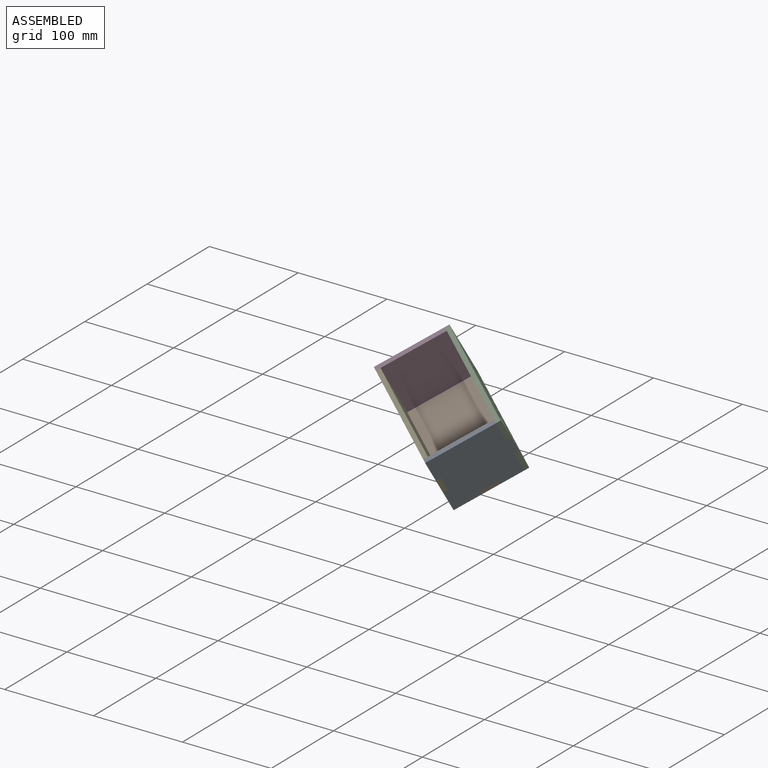
[diagram: assembled view]
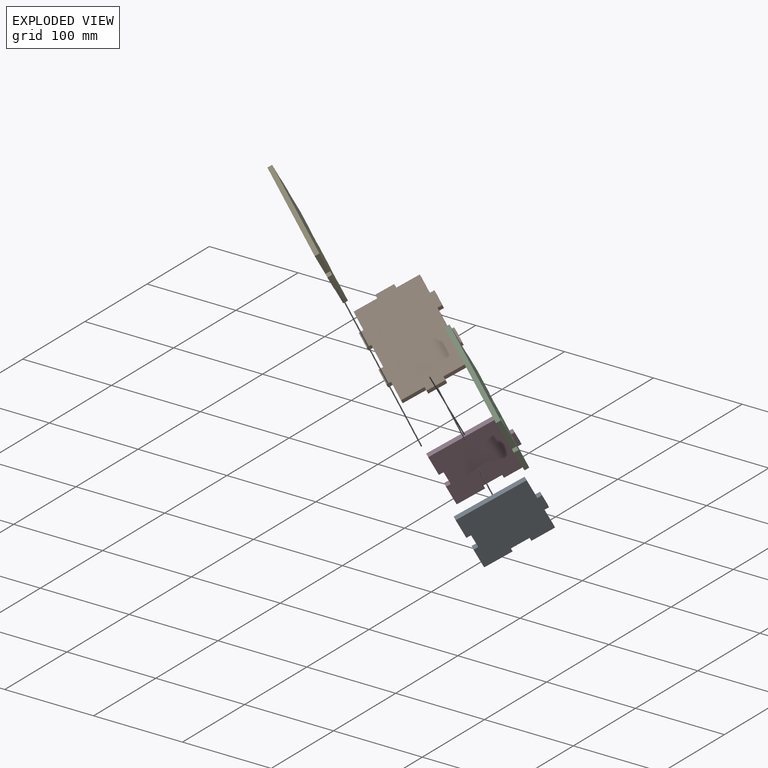
[diagram: exploded view]
GUIDED TOUR — MATED ASSEMBLY (Onshape document 593e45ef1ea8e15d8db4bd67, AutoMate assembly 593e45ef1ea8e15d8db4bd67_9d60de0c282ac33b591d1c6a_9a414924391e167146b77d06_default)

This assembly has 5 components, labeled P0..P4 below (a component is one placed occurrence of a part; the same part can appear more than once), held together by 4 mates. A mate is a constraint between two components; its type names the relative motion it leaves free:
  FASTENED — locks the two components together rigidly (no relative motion).
Axis/direction vectors are unit vectors and 'through' points are millimeter coordinates, both in the assembly's world frame.

MATES
  1. FASTENED "Fastened 1": P0 <-> P2, direction (-0.793, 0.499, 0.349) through (293.59, -2.16, 192.42) mm
  2. FASTENED "Fastened 2": P1 <-> P2, direction (-0.793, 0.499, 0.349) through (265.83, 35.37, 175.97) mm
  3. FASTENED "Fastened 4": P3 <-> P2, direction (0.000, -0.574, 0.819) through (198.40, 57.69, 234.33) mm
  4. FASTENED "Fastened 3": P4 <-> P1, direction (0.793, -0.499, -0.349) through (177.46, 8.32, 157.03) mm

ASSEMBLY ORDER
  1. P2 — the base component [order heuristic]
  2. P1 — core [order heuristic]
  3. P3 — core [order heuristic]
  4. P4 — core [order heuristic]
  5. P0 [order verified]
(P0 verified with a relaxed clearance tolerance: the source model stores slight part interference there.)
Order-tag legend:
  [order verified] — this step's position reverses a verified removal order: the component was checked to insert without passing through the ones already placed.
  [order heuristic] — the first 4 components form the assembly's core: parts whose collision-free extraction could not be verified, listed in mate-graph order.

Of the 5 components, 5 carry the full construction recipe — the FeatureScript program that regenerates the part's solid from scratch; the rest are supplied as boundary geometry only.
Each toured component is shown spotlighted twice — in the assembled view, then in the exploded view, where a leader line traces a displaced component back to its assembled socket (saturated green if recipe-attached, orange if geometry-only; every other component desaturated gray) — followed by its recipe or geometry summary and the mates that hold it.
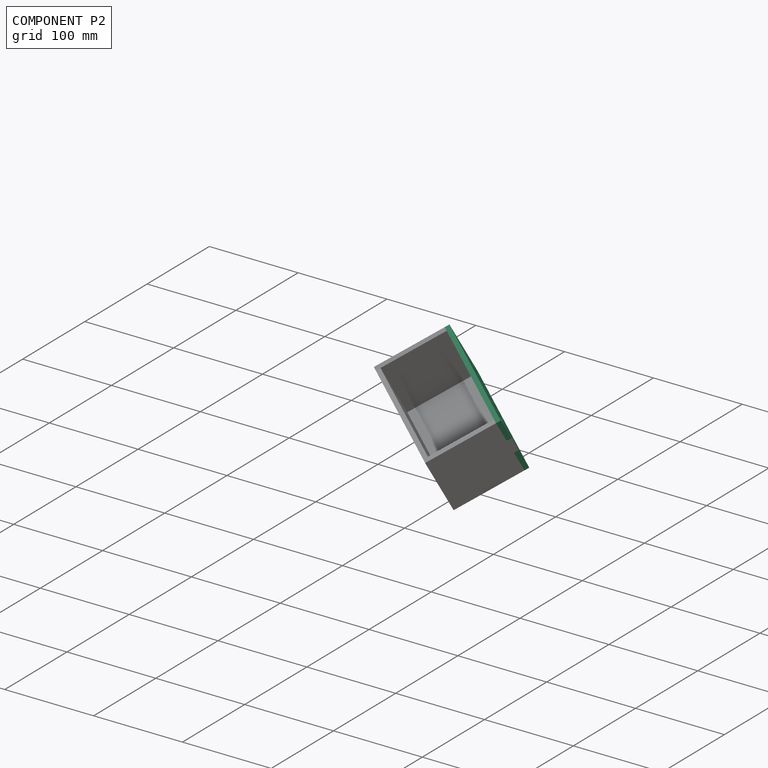
[diagram: component P2 — assembled]
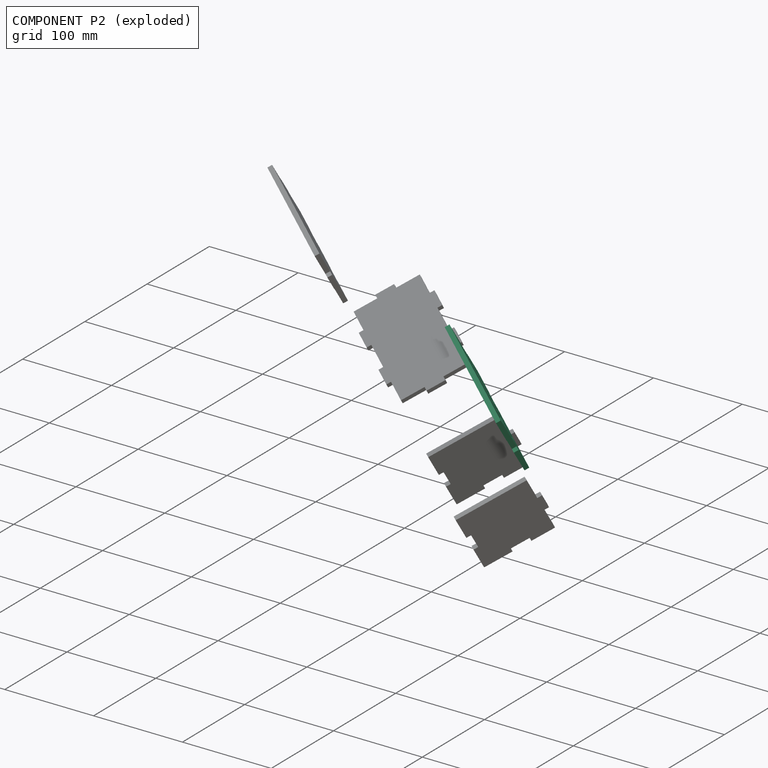
[diagram: component P2 — exploded]
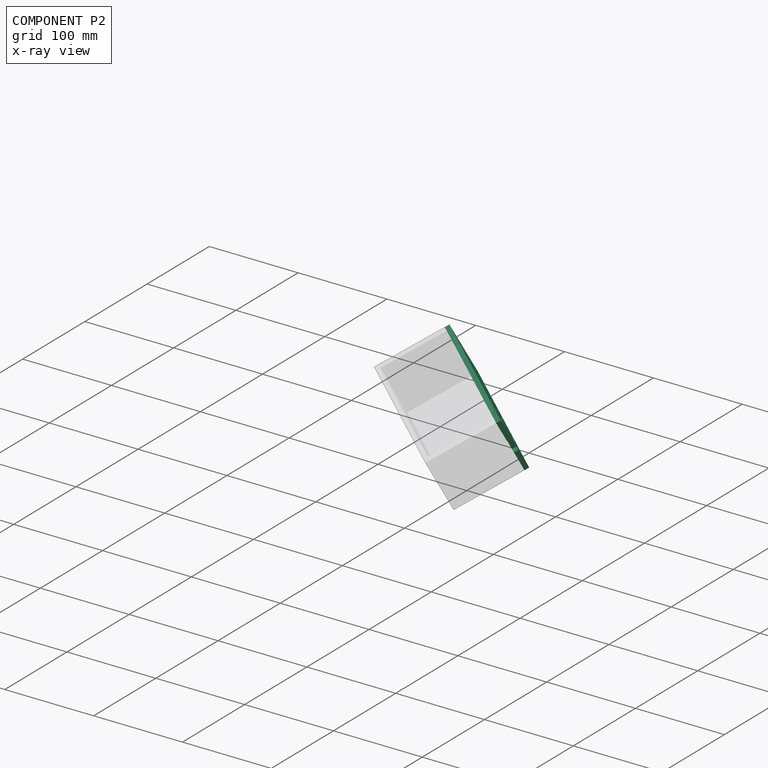
[diagram: component P2 — x-ray view]
COMPONENT P2 — recipe-attached (CADFS 00365997, mesh-verified: the recipe's output STEP matches this component's geometry to below the mesh-comparison resolution (tessellation chordal tolerance ~0.229 mm)).
Held by: FASTENED mate "Fastened 1" to P0; FASTENED mate "Fastened 2" to P1; FASTENED mate "Fastened 4" to P3.
Construction recipe (FeatureScript — the CAD program that rebuilds this solid; sketch coordinates are in the units given by the * unit suffixes, e.g. mm):

FeatureScript 1511;
import(path : "onshape/std/geometry.fs", version : "1511.0");
import(path : "onshape/std/common.fs", version : "1511.0");
const mm = millimeter;
const VERTEX = EntityType.VERTEX;
const EDGE = EntityType.EDGE;
const FACE = EntityType.FACE;
const BODY = EntityType.BODY;
function v(x, y){return vector(x, y);}
function OD(order){return orderDisambiguation(order);}
function OSD(set){return originalSetDisambiguation(set);}
function TD(topology){return topologyDisambiguation(topology);}
function TDD(query){return trueDependencyDisambiguation(query);}
function sQuery(a, b, c) {return sketchEntityQuery(a, b, c);}

annotation { "Feature Type Name" : "Feature", "Feature Type Description" : "" }
export const myFeature = defineFeature(function(context is Context, id is Id, definition is map)
    precondition{}
    {
        {
            var Q0;
            Q0=qCreatedBy(makeId("Front.planeOp"),FACE);
            var sketch = newSketch(context, id + "F0", { "sketchPlane" : qUnion([Q0])});
            skLineSegment(sketch, "E0", {"start": v(0, 0) * mm, "end": v(30, 0) * mm});
            skLineSegment(sketch, "E1", {"start": v(30, 0) * mm, "end": v(30, 5) * mm});
            skLineSegment(sketch, "E2", {"start": v(30, 5) * mm, "end": v(50, 5) * mm});
            skLineSegment(sketch, "E3", {"start": v(50, 5) * mm, "end": v(50, 0) * mm});
            skLineSegment(sketch, "E4", {"start": v(50, 0) * mm, "end": v(80, 0) * mm});
            skLineSegment(sketch, "E5", {"start": v(80, 0) * mm, "end": v(80, 5) * mm});
            skLineSegment(sketch, "E6", {"start": v(80, 5) * mm, "end": v(100, 5) * mm});
            skLineSegment(sketch, "E7", {"start": v(100, 5) * mm, "end": v(100, 0) * mm});
            skLineSegment(sketch, "E8", {"start": v(100, 0) * mm, "end": v(130, 0) * mm});
            skLineSegment(sketch, "E9", {"start": v(130, 0) * mm, "end": v(130, 30) * mm});
            skLineSegment(sketch, "E10", {"start": v(130, 30) * mm, "end": v(125, 30) * mm});
            skLineSegment(sketch, "E11", {"start": v(125, 30) * mm, "end": v(125, 50) * mm});
            skLineSegment(sketch, "E12", {"start": v(125, 50) * mm, "end": v(130, 50) * mm});
            skLineSegment(sketch, "E13", {"start": v(130, 50) * mm, "end": v(130, 80) * mm});
            skLineSegment(sketch, "E14", {"start": v(130, 80) * mm, "end": v(0, 80) * mm});
            skLineSegment(sketch, "E15", {"start": v(0, 80) * mm, "end": v(0, 50) * mm});
            skLineSegment(sketch, "E16", {"start": v(0, 50) * mm, "end": v(5, 50) * mm});
            skLineSegment(sketch, "E17", {"start": v(5, 50) * mm, "end": v(5, 30) * mm});
            skLineSegment(sketch, "E18", {"start": v(5, 30) * mm, "end": v(0, 30) * mm});
            skLineSegment(sketch, "E19", {"start": v(0, 30) * mm, "end": v(0, 0) * mm});
            skSolve(sketch);
        }
        {
            var Q0;
            Q0=makeQuery(id+"F0.imprint","IMPRINT",FACE,{"disambiguationData":[TD([[makeQuery(id+"F0.imprint","IMPRINT",EDGE,{"derivedFrom":sQuery(id+"F0.wireOp",EDGE,"E0")}),1.0]])]});
            extrude(context, id + "F1", {"entities" : qUnion([Q0]), "depth" : 5 * mm});
        }
        {
            var Q0;
            Q0=makeQuery(id+"F1.opExtrude","CAP_FACE",FACE,{"disambiguationData":[OSD([sQuery(id+"F0.wireOp",EDGE,"E0"),sQuery(id+"F0.wireOp",EDGE,"E1"),sQuery(id+"F0.wireOp",EDGE,"E2"),sQuery(id+"F0.wireOp",EDGE,"E3"),sQuery(id+"F0.wireOp",EDGE,"E4"),sQuery(id+"F0.wireOp",EDGE,"E5"),sQuery(id+"F0.wireOp",EDGE,"E6"),sQuery(id+"F0.wireOp",EDGE,"E7"),sQuery(id+"F0.wireOp",EDGE,"E8"),sQuery(id+"F0.wireOp",EDGE,"E9"),sQuery(id+"F0.wireOp",EDGE,"E10"),sQuery(id+"F0.wireOp",EDGE,"E11"),sQuery(id+"F0.wireOp",EDGE,"E12"),sQuery(id+"F0.wireOp",EDGE,"E13"),sQuery(id+"F0.wireOp",EDGE,"E14"),sQuery(id+"F0.wireOp",EDGE,"E15"),sQuery(id+"F0.wireOp",EDGE,"E16"),sQuery(id+"F0.wireOp",EDGE,"E17"),sQuery(id+"F0.wireOp",EDGE,"E18"),sQuery(id+"F0.wireOp",EDGE,"E19")])],"isStart":false});
            var sketch = newSketch(context, id + "F2", { "sketchPlane" : qUnion([Q0])});
            skLineSegment(sketch, "E20.bottom", {"start": v(12.5, 72) * mm, "end": v(25.5, 72) * mm});
            skLineSegment(sketch, "E20.top", {"start": v(12.5, 53) * mm, "end": v(25.5, 53) * mm});
            skLineSegment(sketch, "E20.left", {"start": v(12.5, 72) * mm, "end": v(12.5, 53) * mm});
            skLineSegment(sketch, "E20.right", {"start": v(25.5, 72) * mm, "end": v(25.5, 53) * mm});
            skLineSegment(sketch, "E21.bottom", {"start": v(32, 26) * mm, "end": v(38, 26) * mm});
            skLineSegment(sketch, "E21.top", {"start": v(32, 20) * mm, "end": v(38, 20) * mm});
            skLineSegment(sketch, "E21.left", {"start": v(32, 26) * mm, "end": v(32, 20) * mm});
            skLineSegment(sketch, "E21.right", {"start": v(38, 26) * mm, "end": v(38, 20) * mm});
            skLineSegment(sketch, "E22.bottom", {"start": v(50, 20) * mm, "end": v(44, 20) * mm});
            skLineSegment(sketch, "E22.top", {"start": v(50, 26) * mm, "end": v(44, 26) * mm});
            skLineSegment(sketch, "E22.left", {"start": v(50, 20) * mm, "end": v(50, 26) * mm});
            skLineSegment(sketch, "E22.right", {"start": v(44, 20) * mm, "end": v(44, 26) * mm});
            skPoint(sketch, "E22.middle", {"position": v(47, 23) * mm});
            skLineSegment(sketch, "E23.bottom", {"start": v(62, 20) * mm, "end": v(56, 20) * mm});
            skLineSegment(sketch, "E23.top", {"start": v(62, 26) * mm, "end": v(56, 26) * mm});
            skLineSegment(sketch, "E23.left", {"start": v(62, 20) * mm, "end": v(62, 26) * mm});
            skLineSegment(sketch, "E23.right", {"start": v(56, 20) * mm, "end": v(56, 26) * mm});
            skLineSegment(sketch, "E24.bottom", {"start": v(74, 20) * mm, "end": v(68, 20) * mm});
            skLineSegment(sketch, "E24.top", {"start": v(74, 26) * mm, "end": v(68, 26) * mm});
            skLineSegment(sketch, "E24.left", {"start": v(74, 20) * mm, "end": v(74, 26) * mm});
            skLineSegment(sketch, "E24.right", {"start": v(68, 20) * mm, "end": v(68, 26) * mm});
            skLineSegment(sketch, "E25.bottom", {"start": v(86, 20) * mm, "end": v(80, 20) * mm});
            skLineSegment(sketch, "E25.top", {"start": v(86, 26) * mm, "end": v(80, 26) * mm});
            skLineSegment(sketch, "E25.left", {"start": v(86, 20) * mm, "end": v(86, 26) * mm});
            skLineSegment(sketch, "E25.right", {"start": v(80, 20) * mm, "end": v(80, 26) * mm});
            skLineSegment(sketch, "E26.bottom", {"start": v(98, 20) * mm, "end": v(92, 20) * mm});
            skLineSegment(sketch, "E26.top", {"start": v(98, 26) * mm, "end": v(92, 26) * mm});
            skLineSegment(sketch, "E26.left", {"start": v(98, 20) * mm, "end": v(98, 26) * mm});
            skLineSegment(sketch, "E26.right", {"start": v(92, 20) * mm, "end": v(92, 26) * mm});
            skLineSegment(sketch, "E27.bottom", {"start": v(110, 20) * mm, "end": v(104, 20) * mm});
            skLineSegment(sketch, "E27.top", {"start": v(110, 26) * mm, "end": v(104, 26) * mm});
            skLineSegment(sketch, "E27.left", {"start": v(110, 20) * mm, "end": v(110, 26) * mm});
            skLineSegment(sketch, "E27.right", {"start": v(104, 20) * mm, "end": v(104, 26) * mm});
            skLineSegment(sketch, "E28.bottom", {"start": v(26, 20) * mm, "end": v(20, 20) * mm});
            skLineSegment(sketch, "E28.top", {"start": v(26, 26) * mm, "end": v(20, 26) * mm});
            skLineSegment(sketch, "E28.left", {"start": v(26, 20) * mm, "end": v(26, 26) * mm});
            skLineSegment(sketch, "E28.right", {"start": v(20, 20) * mm, "end": v(20, 26) * mm});
            skCircle(sketch, "E29", {"center": v(22.71, 41) * mm, "radius": 2.5 * mm});
            skCircle(sketch, "E30", {"center": v(34.71, 41) * mm, "radius": 2.5 * mm});
            skCircle(sketch, "E31", {"center": v(46.71, 41) * mm, "radius": 2.5 * mm});
            skCircle(sketch, "E32", {"center": v(58.71, 41) * mm, "radius": 2.5 * mm});
            skCircle(sketch, "E33", {"center": v(70.71, 41) * mm, "radius": 2.5 * mm});
            skCircle(sketch, "E34", {"center": v(82.71, 41) * mm, "radius": 2.5 * mm});
            skCircle(sketch, "E35", {"center": v(94.71, 41) * mm, "radius": 2.5 * mm});
            skCircle(sketch, "E36", {"center": v(106.71, 41) * mm, "radius": 2.5 * mm});
            skSolve(sketch);
        }
        {
            var Q0;
            Q0=makeQuery(id+"F2.imprint","IMPRINT",FACE,{"disambiguationData":[TD([[makeQuery(id+"F2.imprint","IMPRINT",EDGE,{"derivedFrom":sQuery(id+"F2.wireOp",EDGE,"E20.bottom")}),-1.0]])]});
            var Q1;
            Q1=makeQuery(id+"F2.imprint","IMPRINT",FACE,{"disambiguationData":[TD([[makeQuery(id+"F2.imprint","IMPRINT",EDGE,{"derivedFrom":sQuery(id+"F2.wireOp",EDGE,"E29")}),1.0]])]});
            var Q2;
            Q2=makeQuery(id+"F2.imprint","IMPRINT",FACE,{"disambiguationData":[TD([[makeQuery(id+"F2.imprint","IMPRINT",EDGE,{"derivedFrom":sQuery(id+"F2.wireOp",EDGE,"E30")}),1.0]])]});
            var Q3;
            Q3=makeQuery(id+"F2.imprint","IMPRINT",FACE,{"disambiguationData":[TD([[makeQuery(id+"F2.imprint","IMPRINT",EDGE,{"derivedFrom":sQuery(id+"F2.wireOp",EDGE,"E31")}),1.0]])]});
            var Q4;
            Q4=makeQuery(id+"F2.imprint","IMPRINT",FACE,{"disambiguationData":[TD([[makeQuery(id+"F2.imprint","IMPRINT",EDGE,{"derivedFrom":sQuery(id+"F2.wireOp",EDGE,"E32")}),1.0]])]});
            var Q5;
            Q5=makeQuery(id+"F2.imprint","IMPRINT",FACE,{"disambiguationData":[TD([[makeQuery(id+"F2.imprint","IMPRINT",EDGE,{"derivedFrom":sQuery(id+"F2.wireOp",EDGE,"E33")}),1.0]])]});
            var Q6;
            Q6=makeQuery(id+"F2.imprint","IMPRINT",FACE,{"disambiguationData":[TD([[makeQuery(id+"F2.imprint","IMPRINT",EDGE,{"derivedFrom":sQuery(id+"F2.wireOp",EDGE,"E34")}),1.0]])]});
            var Q7;
            Q7=makeQuery(id+"F2.imprint","IMPRINT",FACE,{"disambiguationData":[TD([[makeQuery(id+"F2.imprint","IMPRINT",EDGE,{"derivedFrom":sQuery(id+"F2.wireOp",EDGE,"E35")}),1.0]])]});
            var Q8;
            Q8=makeQuery(id+"F2.imprint","IMPRINT",FACE,{"disambiguationData":[TD([[makeQuery(id+"F2.imprint","IMPRINT",EDGE,{"derivedFrom":sQuery(id+"F2.wireOp",EDGE,"E36")}),1.0]])]});
            var Q9;
            Q9=makeQuery(id+"F2.imprint","IMPRINT",FACE,{"disambiguationData":[TD([[makeQuery(id+"F2.imprint","IMPRINT",EDGE,{"derivedFrom":sQuery(id+"F2.wireOp",EDGE,"E27.bottom")}),-1.0]])]});
            var Q10;
            Q10=makeQuery(id+"F2.imprint","IMPRINT",FACE,{"disambiguationData":[TD([[makeQuery(id+"F2.imprint","IMPRINT",EDGE,{"derivedFrom":sQuery(id+"F2.wireOp",EDGE,"E26.bottom")}),-1.0]])]});
            var Q11;
            Q11=makeQuery(id+"F2.imprint","IMPRINT",FACE,{"disambiguationData":[TD([[makeQuery(id+"F2.imprint","IMPRINT",EDGE,{"derivedFrom":sQuery(id+"F2.wireOp",EDGE,"E25.bottom")}),-1.0]])]});
            var Q12;
            Q12=makeQuery(id+"F2.imprint","IMPRINT",FACE,{"disambiguationData":[TD([[makeQuery(id+"F2.imprint","IMPRINT",EDGE,{"derivedFrom":sQuery(id+"F2.wireOp",EDGE,"E24.bottom")}),-1.0]])]});
            var Q13;
            Q13=makeQuery(id+"F2.imprint","IMPRINT",FACE,{"disambiguationData":[TD([[makeQuery(id+"F2.imprint","IMPRINT",EDGE,{"derivedFrom":sQuery(id+"F2.wireOp",EDGE,"E23.bottom")}),-1.0]])]});
            var Q14;
            Q14=makeQuery(id+"F2.imprint","IMPRINT",FACE,{"disambiguationData":[TD([[makeQuery(id+"F2.imprint","IMPRINT",EDGE,{"derivedFrom":sQuery(id+"F2.wireOp",EDGE,"E22.bottom")}),-1.0]])]});
            var Q15;
            Q15=makeQuery(id+"F2.imprint","IMPRINT",FACE,{"disambiguationData":[TD([[makeQuery(id+"F2.imprint","IMPRINT",EDGE,{"derivedFrom":sQuery(id+"F2.wireOp",EDGE,"E21.bottom")}),-1.0]])]});
            var Q16;
            Q16=makeQuery(id+"F2.imprint","IMPRINT",FACE,{"disambiguationData":[TD([[makeQuery(id+"F2.imprint","IMPRINT",EDGE,{"derivedFrom":sQuery(id+"F2.wireOp",EDGE,"E28.bottom")}),-1.0]])]});
            extrude(context, id + "F3", {"entities" : qUnion([Q0, Q1, Q2, Q3, Q4, Q5, Q6, Q7, Q8, Q9, Q10, Q11, Q12, Q13, Q14, Q15, Q16]), "operationType" : NewBodyOperationType.REMOVE, "oppositeDirection" : true, "depth" : 25 * mm});
        }
    });
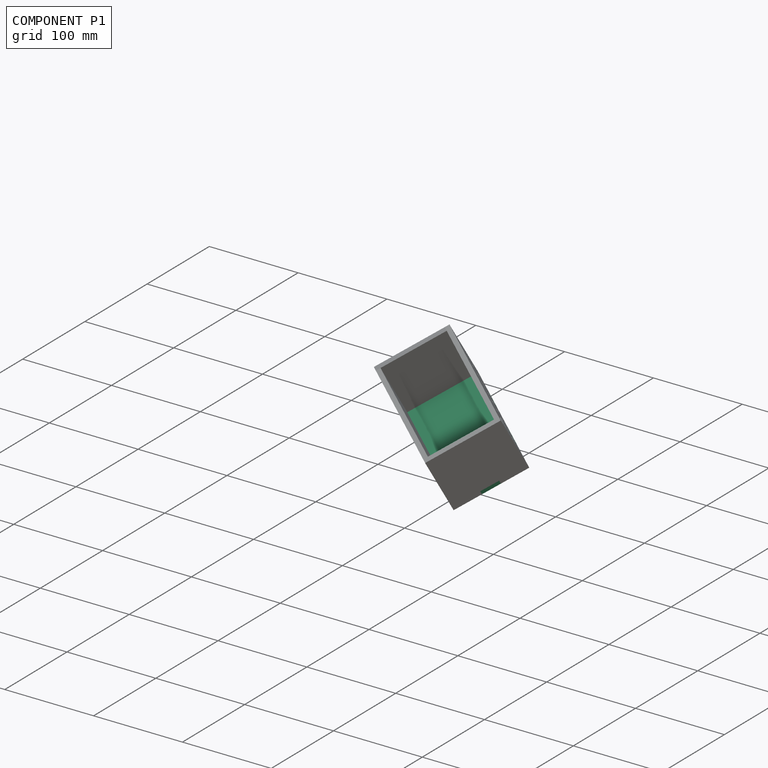
[diagram: component P1 — assembled]
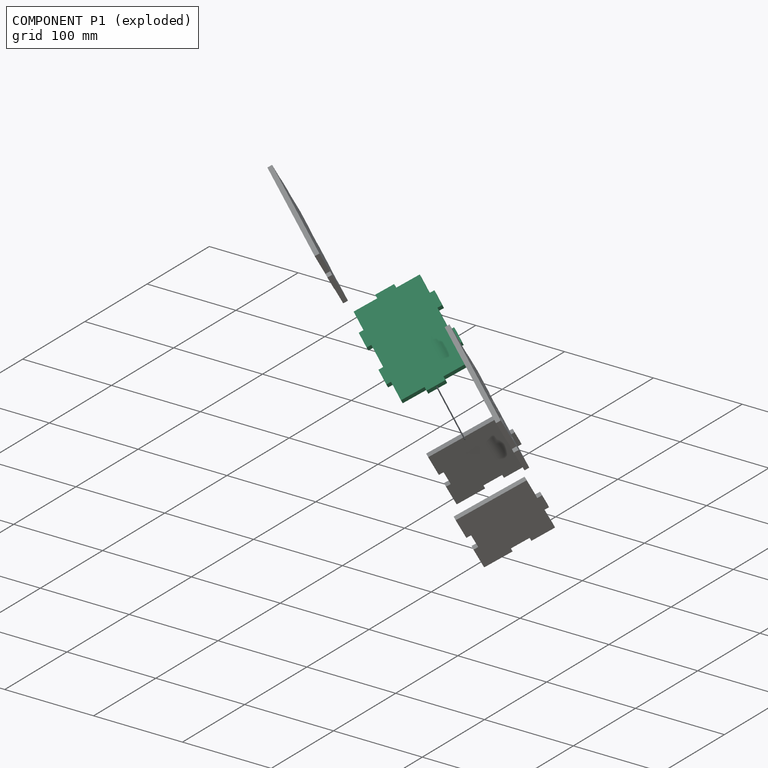
[diagram: component P1 — exploded]
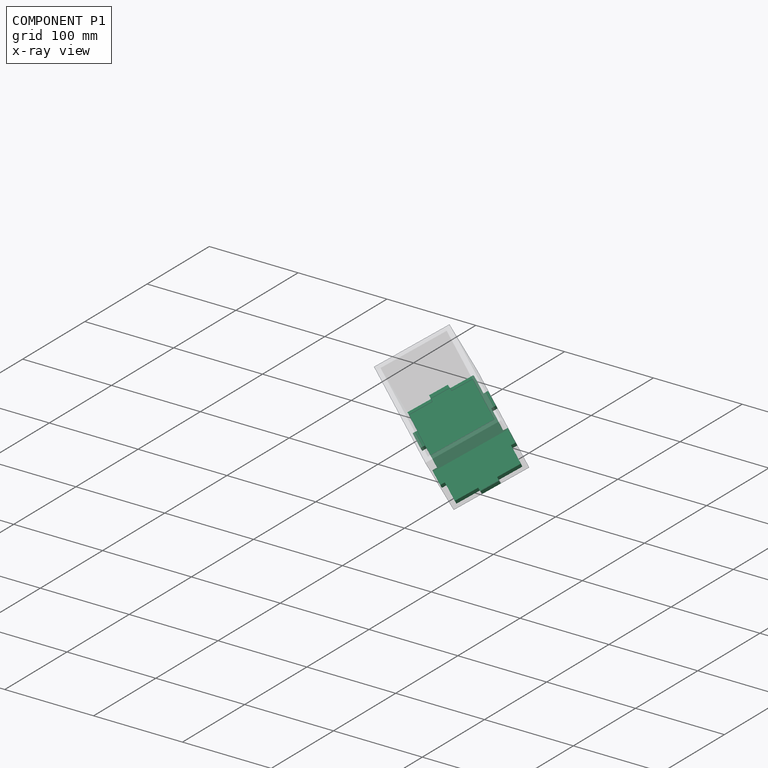
[diagram: component P1 — x-ray view]
COMPONENT P1 — recipe-attached (CADFS 00366001, mesh-verified: the recipe's output STEP matches this component's geometry to below the mesh-comparison resolution (tessellation chordal tolerance ~0.229 mm)).
Held by: FASTENED mate "Fastened 2" to P2; FASTENED mate "Fastened 3" to P4.
Construction recipe (FeatureScript — the CAD program that rebuilds this solid; sketch coordinates are in the units given by the * unit suffixes, e.g. mm):

FeatureScript 1511;
import(path : "onshape/std/geometry.fs", version : "1511.0");
import(path : "onshape/std/common.fs", version : "1511.0");
const mm = millimeter;
const VERTEX = EntityType.VERTEX;
const EDGE = EntityType.EDGE;
const FACE = EntityType.FACE;
const BODY = EntityType.BODY;
function v(x, y){return vector(x, y);}
function OD(order){return orderDisambiguation(order);}
function OSD(set){return originalSetDisambiguation(set);}
function TD(topology){return topologyDisambiguation(topology);}
function TDD(query){return trueDependencyDisambiguation(query);}
function sQuery(a, b, c) {return sketchEntityQuery(a, b, c);}

annotation { "Feature Type Name" : "Feature", "Feature Type Description" : "" }
export const myFeature = defineFeature(function(context is Context, id is Id, definition is map)
    precondition{}
    {
        {
            var Q0;
            Q0=qCreatedBy(makeId("Front.planeOp"),FACE);
            var sketch = newSketch(context, id + "F0", { "sketchPlane" : qUnion([Q0])});
            skLineSegment(sketch, "E0", {"start": v(0, 0) * mm, "end": v(25, 0) * mm});
            skLineSegment(sketch, "E1", {"start": v(25, 0) * mm, "end": v(25, -5) * mm});
            skLineSegment(sketch, "E2", {"start": v(25, -5) * mm, "end": v(45, -5) * mm});
            skLineSegment(sketch, "E3", {"start": v(45, -5) * mm, "end": v(45, 0) * mm});
            skLineSegment(sketch, "E4", {"start": v(45, 0) * mm, "end": v(75, 0) * mm});
            skLineSegment(sketch, "E5", {"start": v(75, 0) * mm, "end": v(75, -5) * mm});
            skLineSegment(sketch, "E6", {"start": v(75, -5) * mm, "end": v(95, -5) * mm});
            skLineSegment(sketch, "E7", {"start": v(95, -5) * mm, "end": v(95, 0) * mm});
            skLineSegment(sketch, "E8", {"start": v(95, 0) * mm, "end": v(120, 0) * mm});
            skLineSegment(sketch, "E9", {"start": v(120, 0) * mm, "end": v(120, 25) * mm});
            skLineSegment(sketch, "E10", {"start": v(120, 25) * mm, "end": v(125, 25) * mm});
            skLineSegment(sketch, "E11", {"start": v(125, 25) * mm, "end": v(125, 45) * mm});
            skLineSegment(sketch, "E12", {"start": v(125, 45) * mm, "end": v(120, 45) * mm});
            skLineSegment(sketch, "E13", {"start": v(120, 45) * mm, "end": v(120, 70) * mm});
            skLineSegment(sketch, "E14", {"start": v(120, 70) * mm, "end": v(95, 70) * mm});
            skLineSegment(sketch, "E15", {"start": v(95, 70) * mm, "end": v(95, 75) * mm});
            skLineSegment(sketch, "E16", {"start": v(95, 75) * mm, "end": v(75, 75) * mm});
            skLineSegment(sketch, "E17", {"start": v(75, 75) * mm, "end": v(75, 70) * mm});
            skLineSegment(sketch, "E18", {"start": v(75, 70) * mm, "end": v(45, 70) * mm});
            skLineSegment(sketch, "E19", {"start": v(45, 70) * mm, "end": v(45, 75) * mm});
            skLineSegment(sketch, "E20", {"start": v(45, 75) * mm, "end": v(25, 75) * mm});
            skLineSegment(sketch, "E21", {"start": v(25, 75) * mm, "end": v(25, 70) * mm});
            skLineSegment(sketch, "E22", {"start": v(25, 70) * mm, "end": v(0, 70) * mm});
            skLineSegment(sketch, "E23", {"start": v(0, 70) * mm, "end": v(0, 45) * mm});
            skLineSegment(sketch, "E24", {"start": v(0, 45) * mm, "end": v(-5, 45) * mm});
            skLineSegment(sketch, "E25", {"start": v(-5, 45) * mm, "end": v(-5, 25) * mm});
            skLineSegment(sketch, "E26", {"start": v(-5, 25) * mm, "end": v(0, 25) * mm});
            skLineSegment(sketch, "E27", {"start": v(0, 25) * mm, "end": v(0, 0) * mm});
            skSolve(sketch);
        }
        {
            var Q0;
            Q0=makeQuery(id+"F0.imprint","IMPRINT",FACE,{"disambiguationData":[TD([[makeQuery(id+"F0.imprint","IMPRINT",EDGE,{"derivedFrom":sQuery(id+"F0.wireOp",EDGE,"E0")}),1.0]])]});
            extrude(context, id + "F1", {"entities" : qUnion([Q0]), "depth" : 5 * mm});
        }
    });
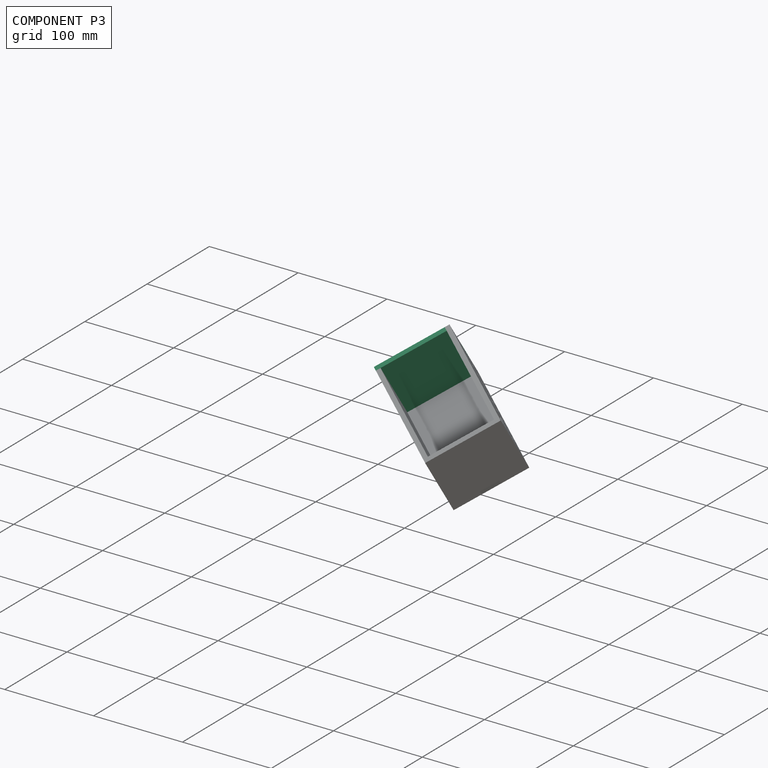
[diagram: component P3 — assembled]
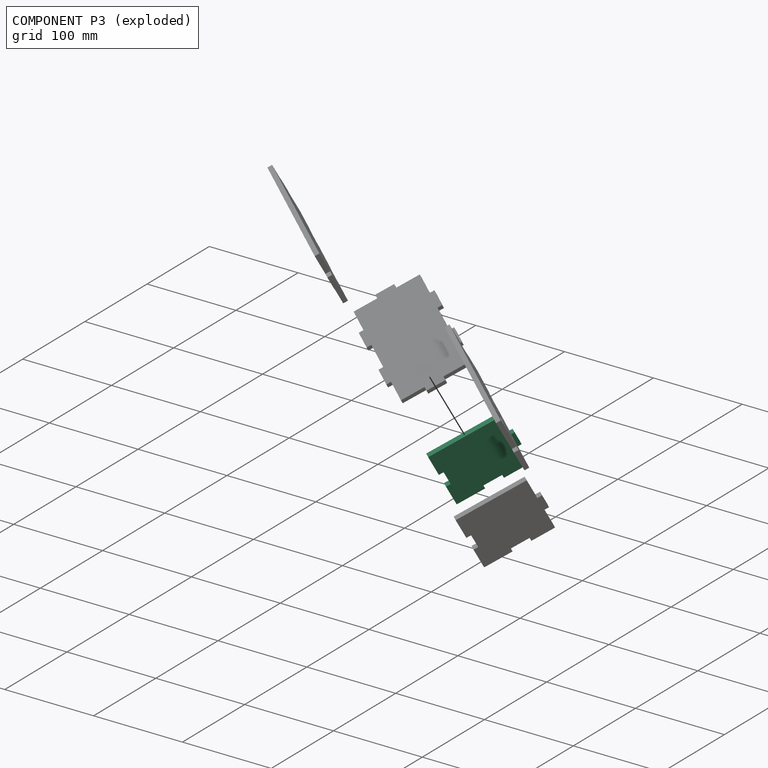
[diagram: component P3 — exploded]
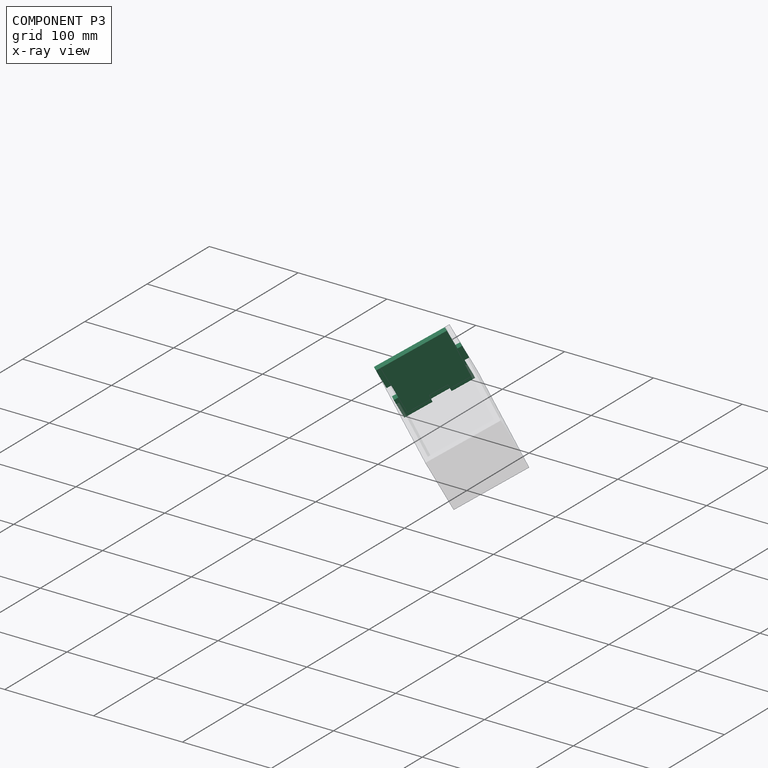
[diagram: component P3 — x-ray view]
COMPONENT P3 — recipe-attached (CADFS 00365998, mesh-verified: the recipe's output STEP matches this component's geometry to below the mesh-comparison resolution (tessellation chordal tolerance ~0.17 mm)).
Held by: FASTENED mate "Fastened 4" to P2.
Construction recipe (FeatureScript — the CAD program that rebuilds this solid; sketch coordinates are in the units given by the * unit suffixes, e.g. mm):

FeatureScript 1511;
import(path : "onshape/std/geometry.fs", version : "1511.0");
import(path : "onshape/std/common.fs", version : "1511.0");
const mm = millimeter;
const VERTEX = EntityType.VERTEX;
const EDGE = EntityType.EDGE;
const FACE = EntityType.FACE;
const BODY = EntityType.BODY;
function v(x, y){return vector(x, y);}
function OD(order){return orderDisambiguation(order);}
function OSD(set){return originalSetDisambiguation(set);}
function TD(topology){return topologyDisambiguation(topology);}
function TDD(query){return trueDependencyDisambiguation(query);}
function sQuery(a, b, c) {return sketchEntityQuery(a, b, c);}

annotation { "Feature Type Name" : "Feature", "Feature Type Description" : "" }
export const myFeature = defineFeature(function(context is Context, id is Id, definition is map)
    precondition{}
    {
        {
            var Q0;
            Q0=qCreatedBy(makeId("Front.planeOp"),FACE);
            var sketch = newSketch(context, id + "F0", { "sketchPlane" : qUnion([Q0])});
            skLineSegment(sketch, "E0", {"start": v(0, 0) * mm, "end": v(30, 0) * mm});
            skLineSegment(sketch, "E1", {"start": v(30, 0) * mm, "end": v(30, 5) * mm});
            skLineSegment(sketch, "E2", {"start": v(30, 5) * mm, "end": v(50, 5) * mm});
            skLineSegment(sketch, "E3", {"start": v(50, 5) * mm, "end": v(50, 0) * mm});
            skLineSegment(sketch, "E4", {"start": v(50, 0) * mm, "end": v(80, 0) * mm});
            skLineSegment(sketch, "E5", {"start": v(80, 0) * mm, "end": v(80, 30) * mm});
            skLineSegment(sketch, "E6", {"start": v(80, 30) * mm, "end": v(75, 30) * mm});
            skLineSegment(sketch, "E7", {"start": v(75, 30) * mm, "end": v(75, 50) * mm});
            skLineSegment(sketch, "E8", {"start": v(75, 50) * mm, "end": v(80, 50) * mm});
            skLineSegment(sketch, "E9", {"start": v(80, 50) * mm, "end": v(80, 75) * mm});
            skLineSegment(sketch, "E10", {"start": v(80, 75) * mm, "end": v(50, 75) * mm});
            skLineSegment(sketch, "E11", {"start": v(50, 75) * mm, "end": v(50, 80) * mm});
            skLineSegment(sketch, "E12", {"start": v(50, 80) * mm, "end": v(30, 80) * mm});
            skLineSegment(sketch, "E13", {"start": v(30, 80) * mm, "end": v(30, 75) * mm});
            skLineSegment(sketch, "E14", {"start": v(30, 75) * mm, "end": v(0, 75) * mm});
            skLineSegment(sketch, "E15", {"start": v(0, 75) * mm, "end": v(0, 0) * mm});
            skSolve(sketch);
        }
        {
            var Q0;
            Q0 = qSketchRegion(id + "F0", true);
            extrude(context, id + "F1", {"entities" : qUnion([Q0]), "depth" : 5 * mm});
        }
    });
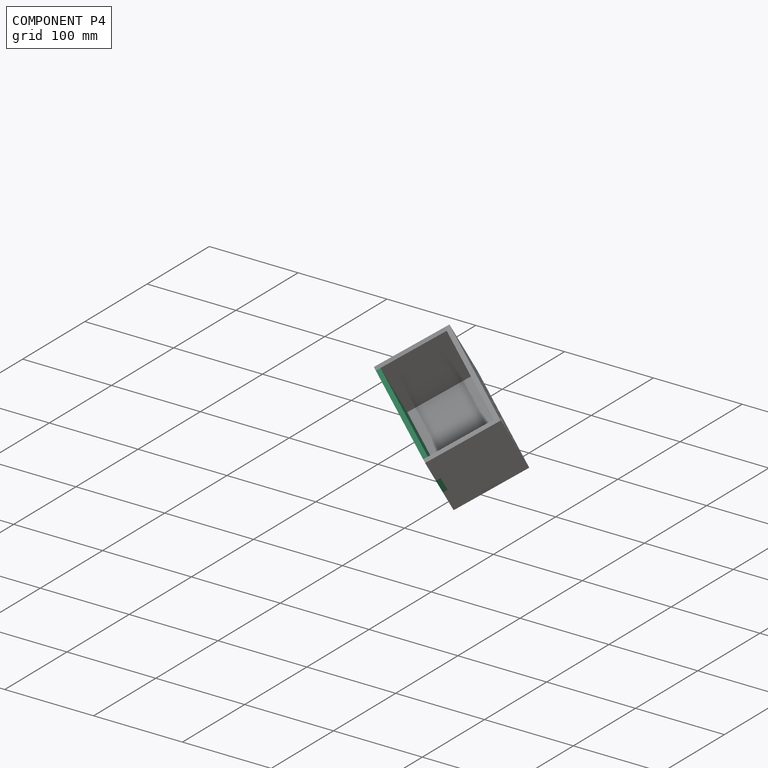
[diagram: component P4 — assembled]
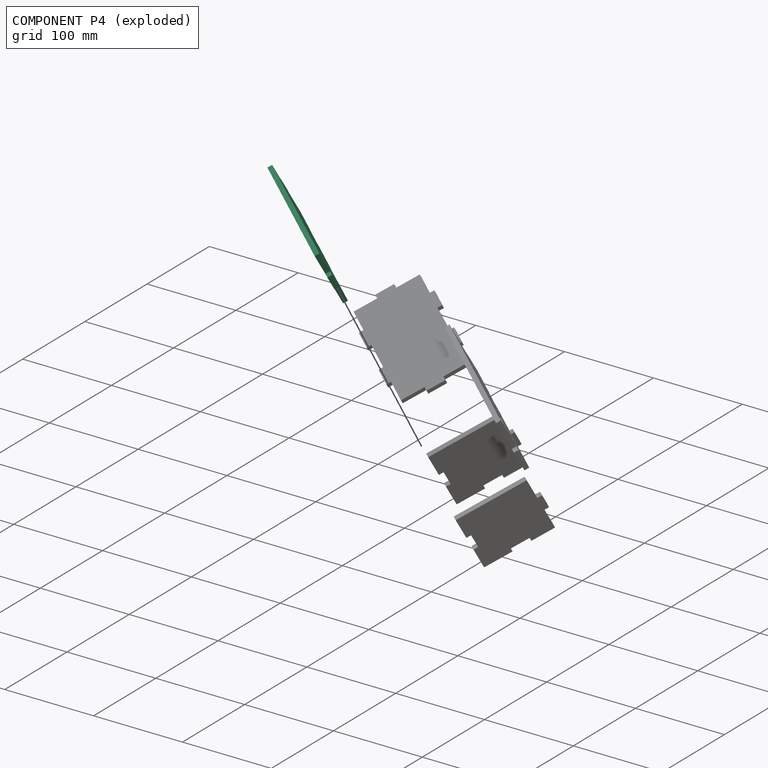
[diagram: component P4 — exploded]
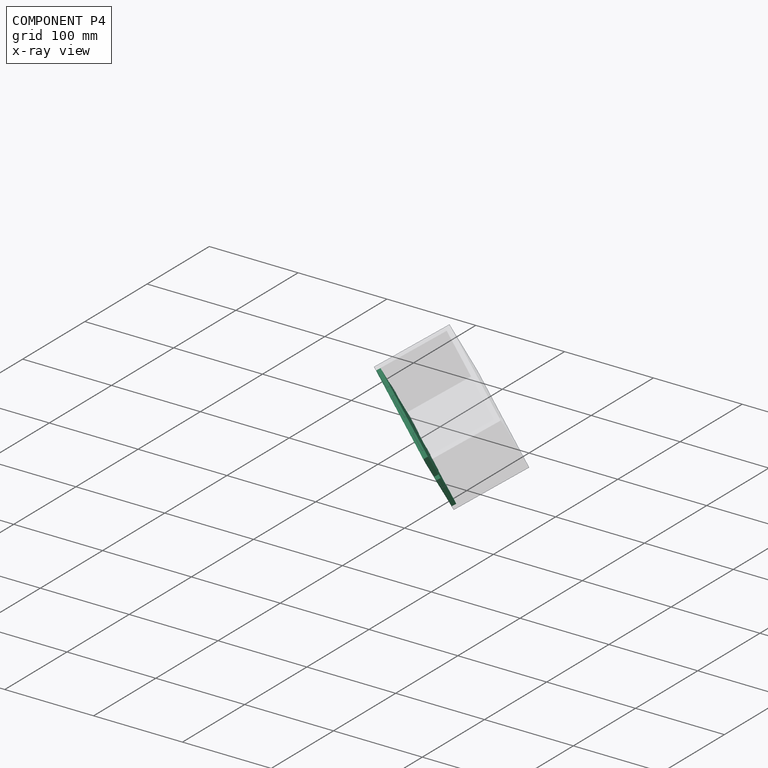
[diagram: component P4 — x-ray view]
COMPONENT P4 — recipe-attached (CADFS 00366000, mesh-verified: the recipe's output STEP matches this component's geometry to below the mesh-comparison resolution (tessellation chordal tolerance ~0.229 mm)).
Held by: FASTENED mate "Fastened 3" to P1.
Construction recipe (FeatureScript — the CAD program that rebuilds this solid; sketch coordinates are in the units given by the * unit suffixes, e.g. mm):

FeatureScript 1511;
import(path : "onshape/std/geometry.fs", version : "1511.0");
import(path : "onshape/std/common.fs", version : "1511.0");
const mm = millimeter;
const VERTEX = EntityType.VERTEX;
const EDGE = EntityType.EDGE;
const FACE = EntityType.FACE;
const BODY = EntityType.BODY;
function v(x, y){return vector(x, y);}
function OD(order){return orderDisambiguation(order);}
function OSD(set){return originalSetDisambiguation(set);}
function TD(topology){return topologyDisambiguation(topology);}
function TDD(query){return trueDependencyDisambiguation(query);}
function sQuery(a, b, c) {return sketchEntityQuery(a, b, c);}

annotation { "Feature Type Name" : "Feature", "Feature Type Description" : "" }
export const myFeature = defineFeature(function(context is Context, id is Id, definition is map)
    precondition{}
    {
        {
            var Q0;
            Q0=qCreatedBy(makeId("Front.planeOp"),FACE);
            var sketch = newSketch(context, id + "F0", { "sketchPlane" : qUnion([Q0])});
            skLineSegment(sketch, "E0", {"start": v(0, 0) * mm, "end": v(0, -30) * mm});
            skLineSegment(sketch, "E1", {"start": v(0, -30) * mm, "end": v(-5, -30) * mm});
            skLineSegment(sketch, "E2", {"start": v(-5, -30) * mm, "end": v(-5, -50) * mm});
            skLineSegment(sketch, "E3", {"start": v(-5, -50) * mm, "end": v(0, -50) * mm});
            skLineSegment(sketch, "E4", {"start": v(0, -50) * mm, "end": v(0, -80) * mm});
            skLineSegment(sketch, "E5", {"start": v(0, -80) * mm, "end": v(25, -80) * mm});
            skLineSegment(sketch, "E6", {"start": v(25, -80) * mm, "end": v(25, -75) * mm});
            skLineSegment(sketch, "E7", {"start": v(25, -75) * mm, "end": v(45, -75) * mm});
            skLineSegment(sketch, "E8", {"start": v(45, -75) * mm, "end": v(45, -80) * mm});
            skLineSegment(sketch, "E9", {"start": v(45, -80) * mm, "end": v(75, -80) * mm});
            skLineSegment(sketch, "E10", {"start": v(75, -80) * mm, "end": v(75, -75) * mm});
            skLineSegment(sketch, "E11", {"start": v(75, -75) * mm, "end": v(95, -75) * mm});
            skLineSegment(sketch, "E12", {"start": v(95, -75) * mm, "end": v(95, -80) * mm});
            skLineSegment(sketch, "E13", {"start": v(95, -80) * mm, "end": v(120, -80) * mm});
            skLineSegment(sketch, "E14", {"start": v(120, -80) * mm, "end": v(120, -50) * mm});
            skLineSegment(sketch, "E15", {"start": v(120, -50) * mm, "end": v(125, -50) * mm});
            skLineSegment(sketch, "E16", {"start": v(125, -50) * mm, "end": v(125, -30) * mm});
            skLineSegment(sketch, "E17", {"start": v(125, -30) * mm, "end": v(120, -30) * mm});
            skLineSegment(sketch, "E18", {"start": v(120, -30) * mm, "end": v(120, 0) * mm});
            skLineSegment(sketch, "E19", {"start": v(120, 0) * mm, "end": v(0, 0) * mm});
            skSolve(sketch);
        }
        {
            var Q0;
            Q0=makeQuery(id+"F0.imprint","IMPRINT",FACE,{"disambiguationData":[TD([[makeQuery(id+"F0.imprint","IMPRINT",EDGE,{"derivedFrom":sQuery(id+"F0.wireOp",EDGE,"E0")}),1.0]])]});
            extrude(context, id + "F1", {"entities" : qUnion([Q0]), "depth" : 5 * mm});
        }
    });
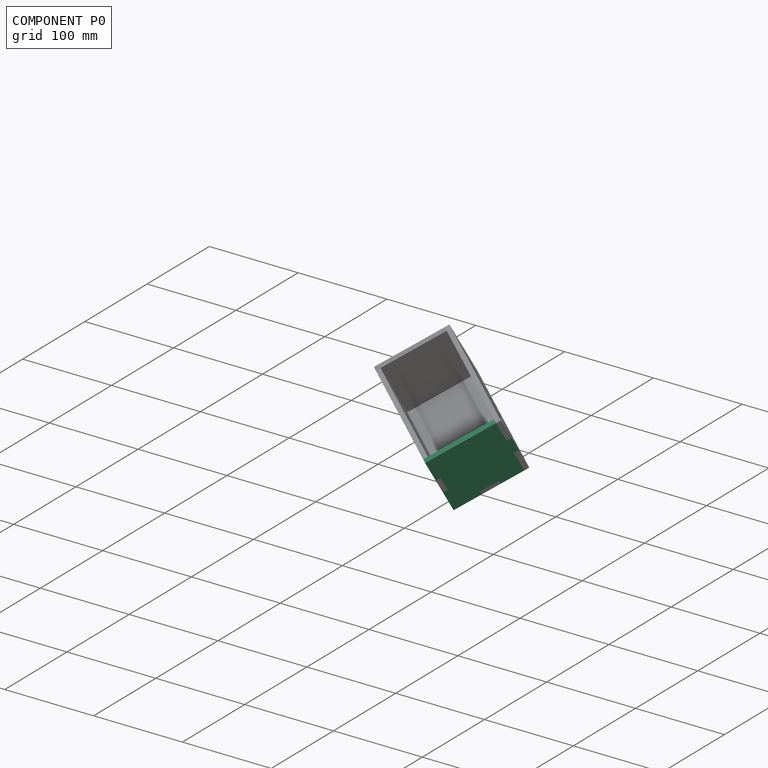
[diagram: component P0 — assembled]
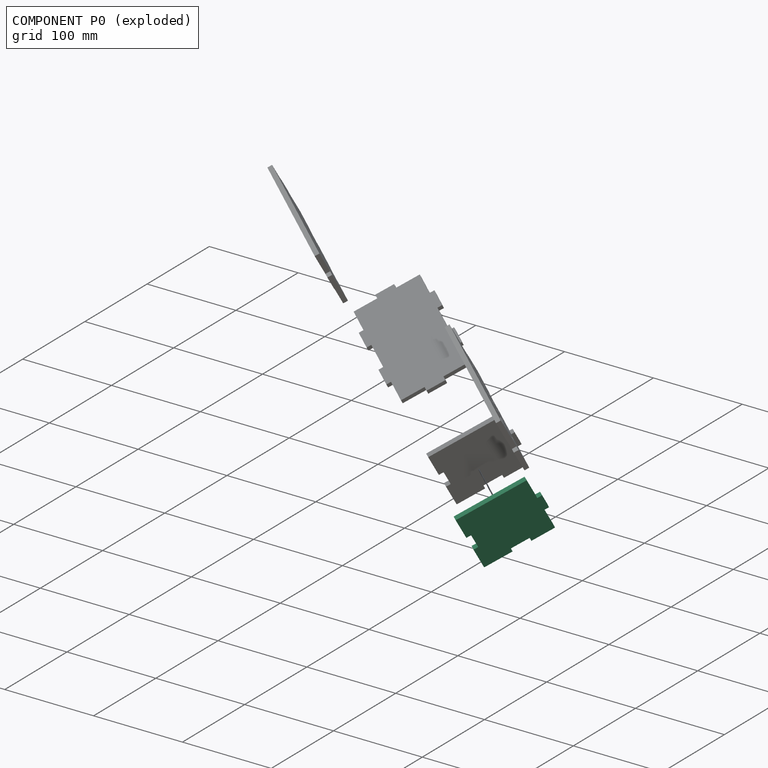
[diagram: component P0 — exploded]
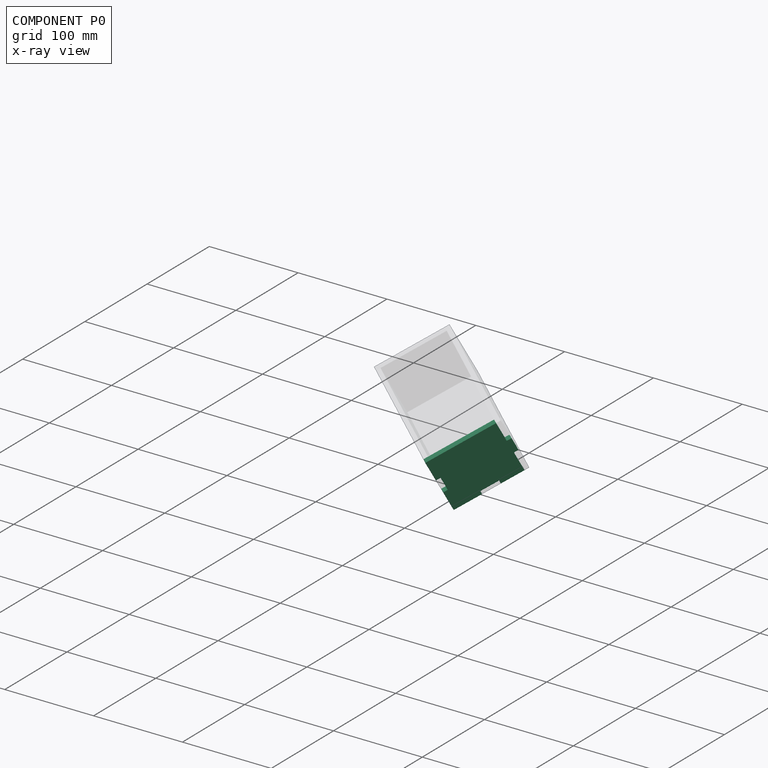
[diagram: component P0 — x-ray view]
COMPONENT P0 — recipe-attached (CADFS 00365998, mesh-verified: the recipe's output STEP matches this component's geometry to below the mesh-comparison resolution (tessellation chordal tolerance ~0.17 mm)).
Held by: FASTENED mate "Fastened 1" to P2.
Construction recipe (FeatureScript — the CAD program that rebuilds this solid; sketch coordinates are in the units given by the * unit suffixes, e.g. mm):

FeatureScript 1511;
import(path : "onshape/std/geometry.fs", version : "1511.0");
import(path : "onshape/std/common.fs", version : "1511.0");
const mm = millimeter;
const VERTEX = EntityType.VERTEX;
const EDGE = EntityType.EDGE;
const FACE = EntityType.FACE;
const BODY = EntityType.BODY;
function v(x, y){return vector(x, y);}
function OD(order){return orderDisambiguation(order);}
function OSD(set){return originalSetDisambiguation(set);}
function TD(topology){return topologyDisambiguation(topology);}
function TDD(query){return trueDependencyDisambiguation(query);}
function sQuery(a, b, c) {return sketchEntityQuery(a, b, c);}

annotation { "Feature Type Name" : "Feature", "Feature Type Description" : "" }
export const myFeature = defineFeature(function(context is Context, id is Id, definition is map)
    precondition{}
    {
        {
            var Q0;
            Q0=qCreatedBy(makeId("Front.planeOp"),FACE);
            var sketch = newSketch(context, id + "F0", { "sketchPlane" : qUnion([Q0])});
            skLineSegment(sketch, "E0", {"start": v(0, 0) * mm, "end": v(30, 0) * mm});
            skLineSegment(sketch, "E1", {"start": v(30, 0) * mm, "end": v(30, 5) * mm});
            skLineSegment(sketch, "E2", {"start": v(30, 5) * mm, "end": v(50, 5) * mm});
            skLineSegment(sketch, "E3", {"start": v(50, 5) * mm, "end": v(50, 0) * mm});
            skLineSegment(sketch, "E4", {"start": v(50, 0) * mm, "end": v(80, 0) * mm});
            skLineSegment(sketch, "E5", {"start": v(80, 0) * mm, "end": v(80, 30) * mm});
            skLineSegment(sketch, "E6", {"start": v(80, 30) * mm, "end": v(75, 30) * mm});
            skLineSegment(sketch, "E7", {"start": v(75, 30) * mm, "end": v(75, 50) * mm});
            skLineSegment(sketch, "E8", {"start": v(75, 50) * mm, "end": v(80, 50) * mm});
            skLineSegment(sketch, "E9", {"start": v(80, 50) * mm, "end": v(80, 75) * mm});
            skLineSegment(sketch, "E10", {"start": v(80, 75) * mm, "end": v(50, 75) * mm});
            skLineSegment(sketch, "E11", {"start": v(50, 75) * mm, "end": v(50, 80) * mm});
            skLineSegment(sketch, "E12", {"start": v(50, 80) * mm, "end": v(30, 80) * mm});
            skLineSegment(sketch, "E13", {"start": v(30, 80) * mm, "end": v(30, 75) * mm});
            skLineSegment(sketch, "E14", {"start": v(30, 75) * mm, "end": v(0, 75) * mm});
            skLineSegment(sketch, "E15", {"start": v(0, 75) * mm, "end": v(0, 0) * mm});
            skSolve(sketch);
        }
        {
            var Q0;
            Q0 = qSketchRegion(id + "F0", true);
            extrude(context, id + "F1", {"entities" : qUnion([Q0]), "depth" : 5 * mm});
        }
    });
PROVENANCE & LICENSES
Assembly (occurrences, transforms, mates, per-part STEP geometry): AutoMate dataset, Zenodo record 7776208, CC0.
Construction recipes: CADFS (HuggingFace VladPyatov/CADFS, CC-BY-4.0, layered over the ABC dataset), FeatureScript reconstruction programs keyed by ABC model id.
Join: ABC meta listings map ABC model id -> Onshape documentId; within a shared document, parts are matched by geometric signature (bounding-box dims + volume at 0.1% relative tolerance, exact B-rep face/solid counts).
Verification: 5 of this assembly's 5 components carry a recipe attachment, and every attachment is mesh-verified: the CADFS STEP and the AutoMate member STEP were compared as meshes in their shared local frame (symmetric sampled-point-to-mesh distance); worst across the 5 attachments: below the mesh-comparison resolution (tessellation chordal tolerance ~0.229 mm) on a 153 mm part.
Renders: orthographic iso camera (az 35 / el 25); the floor grid conveys scale (grid pitch printed in each image; no ruler). In the exploded view each component is displaced by its stored offset vector: the offsets alone carry the explosion direction (mate normal/axis signs are not orientation cues and do not encode it), and separation distances are assigned per mate-chain, not proportionally to assembly-order depth.
